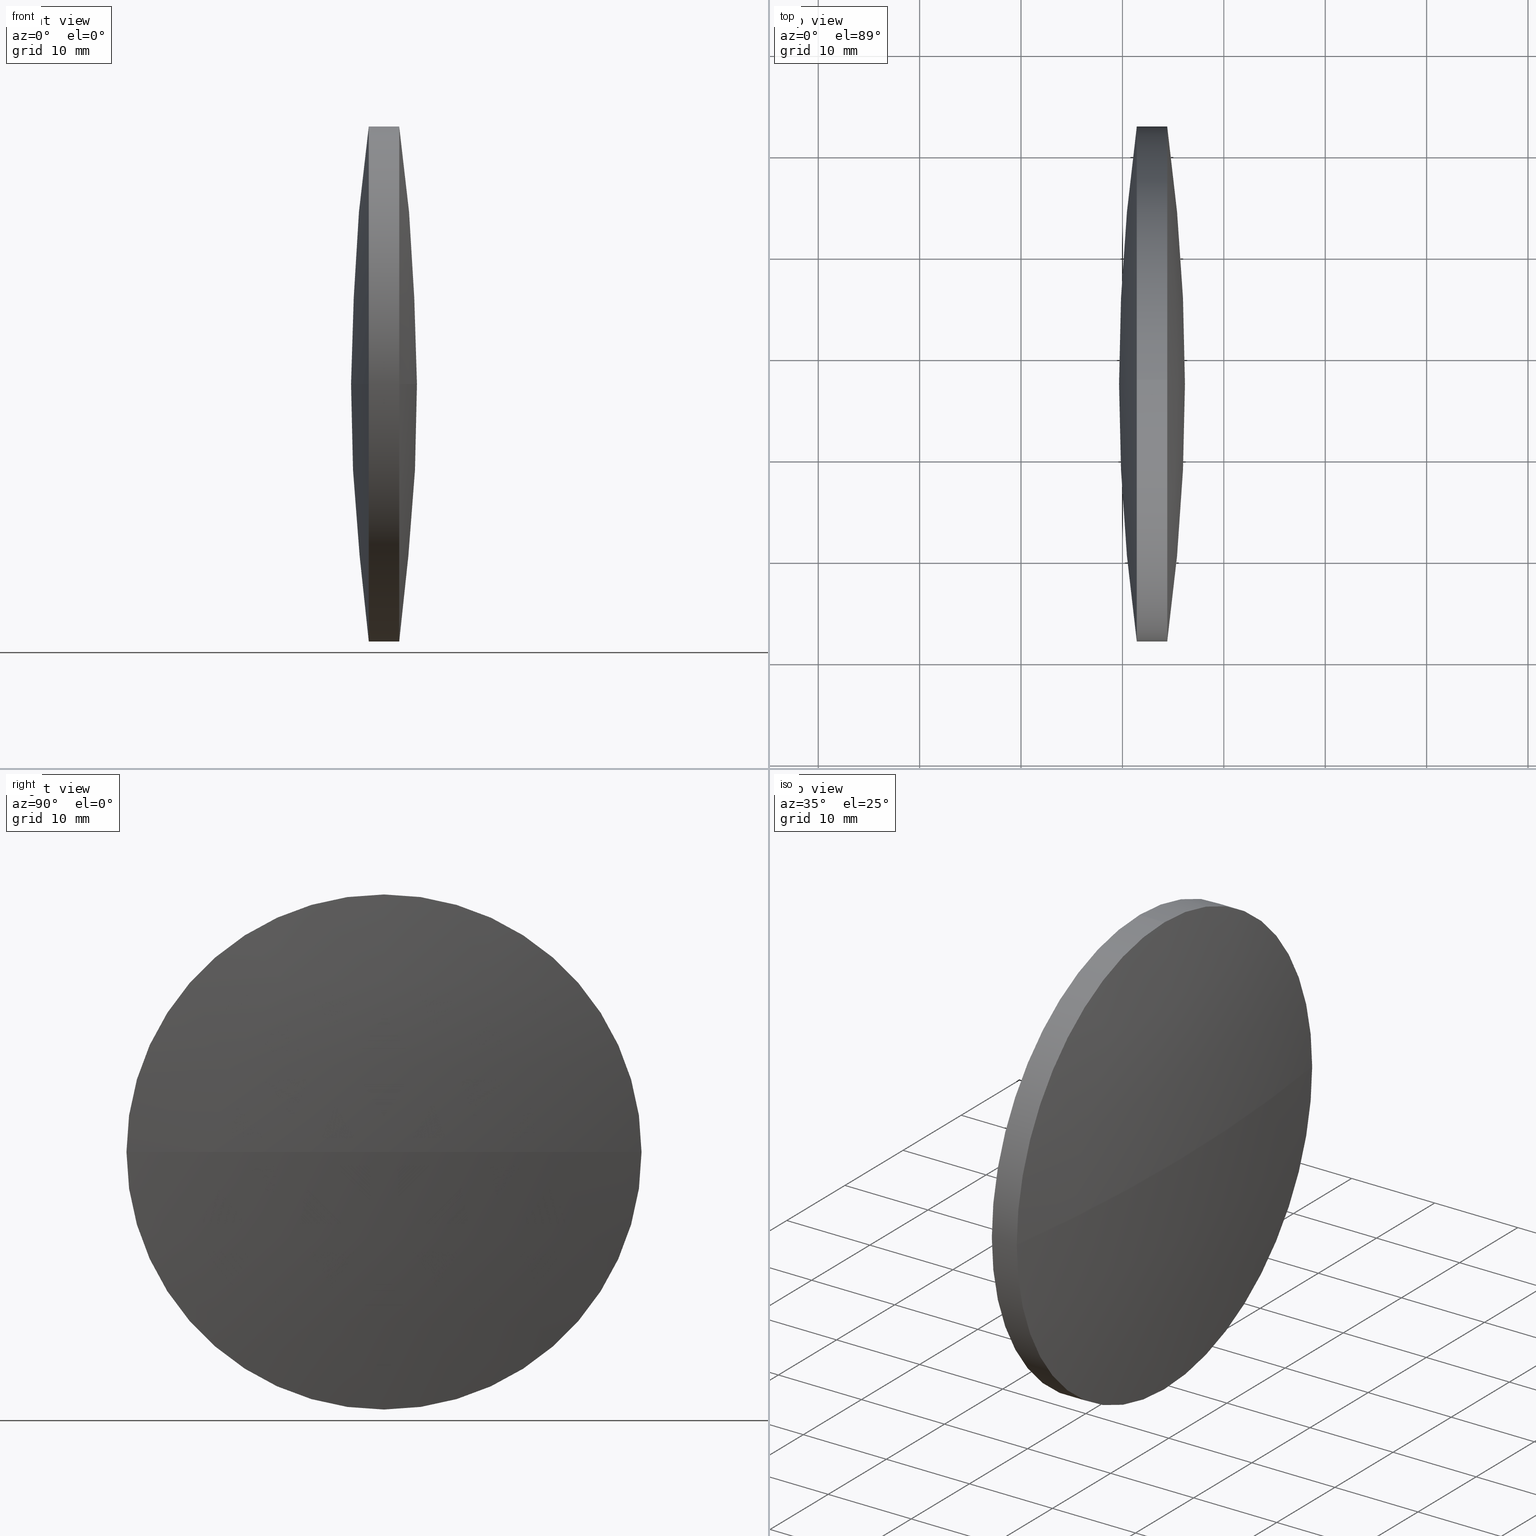
[diagram: canonical four-view strip — front | top / right | iso, engineering-drawing reading convention]
A machine part, canonical four-view strip (front | top / right | iso — engineering-drawing reading convention). The complete STEP part file that produces these views, byte-faithful:
ISO-10303-21;
HEADER;
FILE_DESCRIPTION (( 'STEP AP203' ),
    '1' );
FILE_NAME ('110107.STEP',
    '2019-07-08T08:10:05',
    ( '' ),
    ( '' ),
    'SwSTEP 2.0',
    'SolidWorks 2016',
    '' );
FILE_SCHEMA (( 'CONFIG_CONTROL_DESIGN' ));
ENDSEC;

DATA;
#1 = PERSON_AND_ORGANIZATION ( #26, #70 ) ;
#2 = ORIENTED_EDGE ( 'NONE', *, *, #96, .F. ) ;
#3 = CALENDAR_DATE ( 2019, 8, 7 ) ;
#4 = CARTESIAN_POINT ( 'NONE',  ( 354.8741677356362100, 97.23222604636927700, 0.0000000000000000000 ) ) ;
#5 = PERSON_AND_ORGANIZATION_ROLE ( 'creator' ) ;
#6 = CARTESIAN_POINT ( 'NONE',  ( 171.4164086921822200, 97.23222604636956100, 25.39999999999999100 ) ) ;
#7 = VERTEX_POINT ( 'NONE', #158 ) ;
#8 = APPROVAL_ROLE ( '' ) ;
#9 = PERSON_AND_ORGANIZATION_ROLE ( 'design_owner' ) ;
#10 = CC_DESIGN_PERSON_AND_ORGANIZATION_ASSIGNMENT ( #13, #278, ( #209 ) ) ;
#11 = COORDINATED_UNIVERSAL_TIME_OFFSET ( 8, 0, .AHEAD. ) ;
#12 = PERSON_AND_ORGANIZATION_ROLE ( 'design_owner' ) ;
#13 = PERSON_AND_ORGANIZATION ( #26, #70 ) ;
#14 = ORIENTED_EDGE ( 'NONE', *, *, #279, .T. ) ;
#15 = LOCAL_TIME ( 16, 10, 5.000000000000000000, #11 ) ;
#16 = EDGE_LOOP ( 'NONE', ( #266, #287, #306, #343 ) ) ;
#17 = EDGE_CURVE ( 'NONE', #218, #25, #307, .T. ) ;
#18 = DIRECTION ( 'NONE',  ( -1.000000000000000000, -0.0000000000000000000, -0.0000000000000000000 ) ) ;
#19 = FACE_OUTER_BOUND ( 'NONE', #284, .T. ) ;
#20 = VERTEX_POINT ( 'NONE', #54 ) ;
#21 = CARTESIAN_POINT ( 'NONE',  ( 171.4164086921822200, 97.23222604636956100, 0.0000000000000000000 ) ) ;
#22 = DATE_AND_TIME ( #181, #124 ) ;
#23 = EDGE_CURVE ( 'NONE', #218, #281, #97, .T. ) ;
#24 = CYLINDRICAL_SURFACE ( 'NONE', #310, 25.39999999999999100 ) ;
#25 = VERTEX_POINT ( 'NONE', #268 ) ;
#26 = PERSON ( 'δָ��', 'δָ��', 'δָ��', ('δָ��'), ('δָ��'), ('δָ��') ) ;
#27 = CARTESIAN_POINT ( 'NONE',  ( -9.041392636991657700, 97.23222604636865200, 0.0000000000000000000 ) ) ;
#28 = AXIS2_PLACEMENT_3D ( 'NONE', #27, #323, #114 ) ;
#29 = DIRECTION ( 'NONE',  ( 1.000000000000000000, 0.0000000000000000000, 0.0000000000000000000 ) ) ;
#30 = CARTESIAN_POINT ( 'NONE',  ( 171.4164086921822200, 71.83222604636944200, -3.110602869834257900E-015 ) ) ;
#31 = FACE_OUTER_BOUND ( 'NONE', #37, .T. ) ;
#32 = ORIENTED_EDGE ( 'NONE', *, *, #126, .F. ) ;
#33 = CARTESIAN_POINT ( 'NONE',  ( 354.8741677356362100, 97.23222604636927700, 0.0000000000000000000 ) ) ;
#34 = DIRECTION ( 'NONE',  ( -0.0000000000000000000, 0.0000000000000000000, -1.000000000000000000 ) ) ;
#35 = AXIS2_PLACEMENT_3D ( 'NONE', #317, #254, #324 ) ;
#36 = CC_DESIGN_PERSON_AND_ORGANIZATION_ASSIGNMENT ( #1, #9, ( #215 ) ) ;
#37 = EDGE_LOOP ( 'NONE', ( #308, #66, #176, #52, #2, #191 ) ) ;
#38 = ORIENTED_EDGE ( 'NONE', *, *, #69, .T. ) ;
#39 = CALENDAR_DATE ( 2019, 8, 7 ) ;
#40 = DATE_TIME_ROLE ( 'classification_date' ) ;
#41 = PERSON_AND_ORGANIZATION_ROLE ( 'creator' ) ;
#42 = AXIS2_PLACEMENT_3D ( 'NONE', #217, #314, #319 ) ;
#43 = EDGE_CURVE ( 'NONE', #7, #174, #208, .T. ) ;
#44 = PERSON_AND_ORGANIZATION ( #26, #70 ) ;
#45 = APPROVAL_DATE_TIME ( #117, #269 ) ;
#46 = CIRCLE ( 'NONE', #248, 185.2077464720253200 ) ;
#47 = ORIENTED_EDGE ( 'NONE', *, *, #69, .F. ) ;
#48 = DIRECTION ( 'NONE',  ( 0.0000000000000000000, 0.0000000000000000000, 1.000000000000000000 ) ) ;
#49 = CARTESIAN_POINT ( 'NONE',  ( 171.4164086921822200, 97.23222604636956100, 0.0000000000000000000 ) ) ;
#50 = COORDINATED_UNIVERSAL_TIME_OFFSET ( 8, 0, .AHEAD. ) ;
#51 = DIRECTION ( 'NONE',  ( -1.000000000000000000, -0.0000000000000000000, -0.0000000000000000000 ) ) ;
#52 = ORIENTED_EDGE ( 'NONE', *, *, #146, .T. ) ;
#53 = CC_DESIGN_DATE_AND_TIME_ASSIGNMENT ( #245, #204, ( #263 ) ) ;
#54 = CARTESIAN_POINT ( 'NONE',  ( 171.4164086921822200, 122.6322260463694100, 0.0000000000000000000 ) ) ;
#55 = DIRECTION ( 'NONE',  ( -0.0000000000000000000, 0.0000000000000000000, -1.000000000000000000 ) ) ;
#56 = AXIS2_PLACEMENT_3D ( 'NONE', #242, #18, #48 ) ;
#57 = ORIENTED_EDGE ( 'NONE', *, *, #96, .T. ) ;
#58 = EDGE_CURVE ( 'NONE', #174, #218, #190, .T. ) ;
#59 = CARTESIAN_POINT ( 'NONE',  ( 174.4163664064679400, 97.23222604636956100, 0.0000000000000000000 ) ) ;
#60 = DIRECTION ( 'NONE',  ( 1.000000000000000000, 0.0000000000000000000, 0.0000000000000000000 ) ) ;
#61 = DESIGN_CONTEXT ( 'detailed design', #299, 'design' ) ;
#62 = CC_DESIGN_SECURITY_CLASSIFICATION ( #209, ( #187 ) ) ;
#63 = APPROVAL_ROLE ( '' ) ;
#64 = DIRECTION ( 'NONE',  ( -1.000000000000000000, -0.0000000000000000000, -0.0000000000000000000 ) ) ;
#65 = APPROVAL_ROLE ( '' ) ;
#66 = ORIENTED_EDGE ( 'NONE', *, *, #17, .T. ) ;
#67 = ADVANCED_BREP_SHAPE_REPRESENTATION ( '110107', ( #335, #106 ), #144 ) ;
#68 = AXIS2_PLACEMENT_3D ( 'NONE', #21, #130, #78 ) ;
#69 = EDGE_CURVE ( 'NONE', #151, #20, #102, .T. ) ;
#70 = ORGANIZATION ( 'δָ��', 'δָ��', '' ) ;
#71 = ORIENTED_EDGE ( 'NONE', *, *, #17, .F. ) ;
#72 = LOCAL_TIME ( 16, 10, 5.000000000000000000, #156 ) ;
#73 = EDGE_CURVE ( 'NONE', #281, #182, #107, .T. ) ;
#74 = CARTESIAN_POINT ( 'NONE',  ( 171.4164086921822200, 97.23222604636956100, 0.0000000000000000000 ) ) ;
#75 = APPROVAL ( #207, 'δָ��' ) ;
#76 = FACE_OUTER_BOUND ( 'NONE', #260, .T. ) ;
#77 = DIRECTION ( 'NONE',  ( -1.000000000000000000, -0.0000000000000000000, -0.0000000000000000000 ) ) ;
#78 = DIRECTION ( 'NONE',  ( 0.0000000000000000000, 0.0000000000000000000, 1.000000000000000000 ) ) ;
#79 = EDGE_CURVE ( 'NONE', #20, #281, #118, .T. ) ;
#80 = APPROVAL_PERSON_ORGANIZATION ( #239, #206, #8 ) ;
#81 = SECURITY_CLASSIFICATION ( '', '', #171 ) ;
#82 = DATE_AND_TIME ( #180, #329 ) ;
#83 = PRODUCT ( '110107', '110107', '', ( #136 ) ) ;
#84 = DIRECTION ( 'NONE',  ( 0.0000000000000000000, 0.0000000000000000000, 1.000000000000000000 ) ) ;
#85 = DIRECTION ( 'NONE',  ( -0.0000000000000000000, 0.0000000000000000000, -1.000000000000000000 ) ) ;
#86 = DIRECTION ( 'NONE',  ( 0.0000000000000000000, 0.0000000000000000000, 1.000000000000000000 ) ) ;
#87 = LOCAL_TIME ( 16, 10, 5.000000000000000000, #155 ) ;
#88 = PERSON_AND_ORGANIZATION_ROLE ( 'design_supplier' ) ;
#89 = DIRECTION ( 'NONE',  ( 0.0000000000000000000, 1.000000000000000000, 0.0000000000000000000 ) ) ;
#90 = APPROVAL_STATUS ( 'not_yet_approved' ) ;
#91 = APPLICATION_CONTEXT ( 'configuration controlled 3d designs of mechanical parts and assemblies' ) ;
#92 = CC_DESIGN_PERSON_AND_ORGANIZATION_ASSIGNMENT ( #150, #5, ( #263 ) ) ;
#93 = DATE_AND_TIME ( #159, #237 ) ;
#94 = PERSON_AND_ORGANIZATION ( #26, #70 ) ;
#95 = PERSON_AND_ORGANIZATION ( #26, #70 ) ;
#96 = EDGE_CURVE ( 'NONE', #182, #151, #327, .T. ) ;
#97 = LINE ( 'NONE', #108, #259 ) ;
#98 = ORIENTED_EDGE ( 'NONE', *, *, #43, .T. ) ;
#99 = APPROVAL ( #331, 'δָ��' ) ;
#100 = COORDINATED_UNIVERSAL_TIME_OFFSET ( 8, 0, .AHEAD. ) ;
#101 = LINE ( 'NONE', #244, #312 ) ;
#102 = CIRCLE ( 'NONE', #240, 25.39999999999999100 ) ;
#103 = DESIGN_CONTEXT ( 'detailed design', #122, 'design' ) ;
#104 = DIRECTION ( 'NONE',  ( -1.000000000000000000, -0.0000000000000000000, -0.0000000000000000000 ) ) ;
#105 = CARTESIAN_POINT ( 'NONE',  ( 174.4163664064679400, 97.23222604636956100, 0.0000000000000000000 ) ) ;
#106 = AXIS2_PLACEMENT_3D ( 'NONE', #165, #135, #201 ) ;
#107 = CIRCLE ( 'NONE', #68, 25.39999999999999100 ) ;
#108 = CARTESIAN_POINT ( 'NONE',  ( 165.7441079421506900, 97.23222604636956100, -25.39999999999999100 ) ) ;
#109 = LOCAL_TIME ( 16, 10, 5.000000000000000000, #257 ) ;
#110 = CARTESIAN_POINT ( 'NONE',  ( 174.4163664064679400, 97.23222604636956100, -25.39999999999999100 ) ) ;
#111 = DIRECTION ( 'NONE',  ( -0.0000000000000000000, 0.0000000000000000000, -1.000000000000000000 ) ) ;
#112 = ORIENTED_EDGE ( 'NONE', *, *, #126, .T. ) ;
#113 = DIRECTION ( 'NONE',  ( 0.0000000000000000000, 1.000000000000000000, 0.0000000000000000000 ) ) ;
#114 = DIRECTION ( 'NONE',  ( 0.0000000000000000000, 1.000000000000000000, 1.224646799147353200E-016 ) ) ;
#115 = APPROVAL ( #123, 'δָ��' ) ;
#116 = APPROVAL_STATUS ( 'not_yet_approved' ) ;
#117 = DATE_AND_TIME ( #325, #154 ) ;
#118 = CIRCLE ( 'NONE', #125, 25.39999999999999100 ) ;
#119 = MECHANICAL_CONTEXT ( 'NONE', #91, 'mechanical' ) ;
#120 = ORIENTED_EDGE ( 'NONE', *, *, #146, .F. ) ;
#121 = APPROVAL_PERSON_ORGANIZATION ( #95, #115, #175 ) ;
#122 = APPLICATION_CONTEXT ( 'configuration controlled 3d designs of mechanical parts and assemblies' ) ;
#123 = APPROVAL_STATUS ( 'not_yet_approved' ) ;
#124 = LOCAL_TIME ( 16, 10, 5.000000000000000000, #100 ) ;
#125 = AXIS2_PLACEMENT_3D ( 'NONE', #49, #77, #265 ) ;
#126 = EDGE_CURVE ( 'NONE', #182, #202, #46, .T. ) ;
#127 = COORDINATED_UNIVERSAL_TIME_OFFSET ( 8, 0, .AHEAD. ) ;
#128 = ADVANCED_FACE ( 'NONE', ( #19 ), #342, .T. ) ;
#129 = CC_DESIGN_APPROVAL ( #75, ( #263 ) ) ;
#130 = DIRECTION ( 'NONE',  ( -1.000000000000000000, -0.0000000000000000000, -0.0000000000000000000 ) ) ;
#131 = DATE_AND_TIME ( #305, #247 ) ;
#132 = DIRECTION ( 'NONE',  ( -1.000000000000000000, -0.0000000000000000000, -0.0000000000000000000 ) ) ;
#133 = DIRECTION ( 'NONE',  ( 0.0000000000000000000, 1.000000000000000000, 1.224646799147353500E-016 ) ) ;
#134 = DIRECTION ( 'NONE',  ( 0.0000000000000000000, 1.224646799147353200E-016, -1.000000000000000000 ) ) ;
#135 = DIRECTION ( 'NONE',  ( 0.0000000000000000000, 0.0000000000000000000, 1.000000000000000000 ) ) ;
#136 = MECHANICAL_CONTEXT ( 'NONE', #255, 'mechanical' ) ;
#137 = AXIS2_PLACEMENT_3D ( 'NONE', #105, #345, #220 ) ;
#138 = DIRECTION ( 'NONE',  ( 0.0000000000000000000, 1.000000000000000000, 0.0000000000000000000 ) ) ;
#139 = ORIENTED_EDGE ( 'NONE', *, *, #79, .T. ) ;
#140 = DATE_TIME_ROLE ( 'creation_date' ) ;
#141 = ORIENTED_EDGE ( 'NONE', *, *, #279, .F. ) ;
#142 = APPLICATION_PROTOCOL_DEFINITION ( 'international standard', 'config_control_design', 1994, #299 ) ;
#143 = APPLICATION_PROTOCOL_DEFINITION ( 'international standard', 'config_control_design', 1994, #122 ) ;
#144 =( GEOMETRIC_REPRESENTATION_CONTEXT ( 3 ) GLOBAL_UNCERTAINTY_ASSIGNED_CONTEXT ( ( #216 ) ) GLOBAL_UNIT_ASSIGNED_CONTEXT ( ( #172, #300, #173 ) ) REPRESENTATION_CONTEXT ( 'NONE', 'WORKASPACE' ) );
#145 = PERSON_AND_ORGANIZATION_ROLE ( 'design_supplier' ) ;
#146 = EDGE_CURVE ( 'NONE', #7, #151, #101, .T. ) ;
#147 = PERSON_AND_ORGANIZATION_ROLE ( 'creator' ) ;
#148 = DATE_AND_TIME ( #233, #162 ) ;
#149 = VERTEX_POINT ( 'NONE', #296 ) ;
#150 = PERSON_AND_ORGANIZATION ( #26, #70 ) ;
#151 = VERTEX_POINT ( 'NONE', #6 ) ;
#152 = PRODUCT_DEFINITION ( 'δ֪', '', #187, #61 ) ;
#153 = ADVANCED_FACE ( 'NONE', ( #318 ), #290, .T. ) ;
#154 = LOCAL_TIME ( 16, 10, 5.000000000000000000, #198 ) ;
#155 = COORDINATED_UNIVERSAL_TIME_OFFSET ( 8, 0, .AHEAD. ) ;
#156 = COORDINATED_UNIVERSAL_TIME_OFFSET ( 8, 0, .AHEAD. ) ;
#157 = CC_DESIGN_PERSON_AND_ORGANIZATION_ASSIGNMENT ( #301, #145, ( #282 ) ) ;
#158 = CARTESIAN_POINT ( 'NONE',  ( 174.4163664064679400, 97.23222604636956100, 25.39999999999999100 ) ) ;
#159 = CALENDAR_DATE ( 2019, 8, 7 ) ;
#160 = CC_DESIGN_APPROVAL ( #243, ( #282 ) ) ;
#161 = EDGE_CURVE ( 'NONE', #149, #25, #246, .T. ) ;
#162 = LOCAL_TIME ( 16, 10, 5.000000000000000000, #211 ) ;
#163 = ORIENTED_EDGE ( 'NONE', *, *, #73, .T. ) ;
#164 = CALENDAR_DATE ( 2019, 8, 7 ) ;
#165 = CARTESIAN_POINT ( 'NONE',  ( 0.0000000000000000000, 0.0000000000000000000, 0.0000000000000000000 ) ) ;
#166 = CARTESIAN_POINT ( 'NONE',  ( 171.4164086921822200, 97.23222604636956100, -25.39999999999999100 ) ) ;
#167 = CIRCLE ( 'NONE', #226, 185.2077464720253200 ) ;
#168 = EDGE_LOOP ( 'NONE', ( #298, #195, #328, #47, #120, #98 ) ) ;
#169 = APPROVAL_STATUS ( 'not_yet_approved' ) ;
#170 = DIRECTION ( 'NONE',  ( -1.000000000000000000, -0.0000000000000000000, -0.0000000000000000000 ) ) ;
#171 = SECURITY_CLASSIFICATION_LEVEL ( 'unclassified' ) ;
#172 =( LENGTH_UNIT ( ) NAMED_UNIT ( * ) SI_UNIT ( .MILLI., .METRE. ) );
#173 =( NAMED_UNIT ( * ) SI_UNIT ( $, .STERADIAN. ) SOLID_ANGLE_UNIT ( ) );
#174 = VERTEX_POINT ( 'NONE', #249 ) ;
#175 = APPROVAL_ROLE ( '' ) ;
#176 = ORIENTED_EDGE ( 'NONE', *, *, #225, .T. ) ;
#177 = PERSON_AND_ORGANIZATION_ROLE ( 'creator' ) ;
#178 = AXIS2_PLACEMENT_3D ( 'NONE', #294, #232, #330 ) ;
#179 = ORIENTED_EDGE ( 'NONE', *, *, #199, .F. ) ;
#180 = CALENDAR_DATE ( 2019, 8, 7 ) ;
#181 = CALENDAR_DATE ( 2019, 8, 7 ) ;
#182 = VERTEX_POINT ( 'NONE', #30 ) ;
#183 = AXIS2_PLACEMENT_3D ( 'NONE', #322, #111, #138 ) ;
#184 = PRODUCT_RELATED_PRODUCT_CATEGORY ( 'detail', '', ( #83 ) ) ;
#185 = DATE_AND_TIME ( #164, #87 ) ;
#186 = ADVANCED_FACE ( 'NONE', ( #31 ), #24, .T. ) ;
#187 = PRODUCT_DEFINITION_FORMATION_WITH_SPECIFIED_SOURCE ( '�κ�', '', #215, .NOT_KNOWN. ) ;
#188 = PERSON_AND_ORGANIZATION ( #26, #70 ) ;
#189 = DIRECTION ( 'NONE',  ( 0.0000000000000000000, 0.0000000000000000000, 1.000000000000000000 ) ) ;
#190 = CIRCLE ( 'NONE', #137, 25.39999999999999100 ) ;
#191 = ORIENTED_EDGE ( 'NONE', *, *, #73, .F. ) ;
#192 = AXIS2_PLACEMENT_3D ( 'NONE', #196, #194, #29 ) ;
#193 = CC_DESIGN_APPROVAL ( #99, ( #187 ) ) ;
#194 = DIRECTION ( 'NONE',  ( -0.0000000000000000000, 0.0000000000000000000, 1.000000000000000000 ) ) ;
#195 = ORIENTED_EDGE ( 'NONE', *, *, #23, .T. ) ;
#196 = CARTESIAN_POINT ( 'NONE',  ( -9.041392636991657700, 97.23222604636865200, 0.0000000000000000000 ) ) ;
#197 = CARTESIAN_POINT ( 'NONE',  ( -9.041392636991657700, 97.23222604636865200, 0.0000000000000000000 ) ) ;
#198 = COORDINATED_UNIVERSAL_TIME_OFFSET ( 8, 0, .AHEAD. ) ;
#199 = EDGE_CURVE ( 'NONE', #149, #174, #251, .T. ) ;
#200 = ORIENTED_EDGE ( 'NONE', *, *, #58, .F. ) ;
#201 = DIRECTION ( 'NONE',  ( 1.000000000000000000, 0.0000000000000000000, 0.0000000000000000000 ) ) ;
#202 = VERTEX_POINT ( 'NONE', #273 ) ;
#203 = PERSON_AND_ORGANIZATION ( #26, #70 ) ;
#204 = DATE_TIME_ROLE ( 'creation_date' ) ;
#205 = AXIS2_PLACEMENT_3D ( 'NONE', #197, #55, #253 ) ;
#206 = APPROVAL ( #116, 'δָ��' ) ;
#207 = APPROVAL_STATUS ( 'not_yet_approved' ) ;
#208 = CIRCLE ( 'NONE', #56, 25.39999999999999100 ) ;
#209 = SECURITY_CLASSIFICATION ( '', '', #304 ) ;
#210 = FACE_OUTER_BOUND ( 'NONE', #267, .T. ) ;
#211 = COORDINATED_UNIVERSAL_TIME_OFFSET ( 8, 0, .AHEAD. ) ;
#212 = AXIS2_PLACEMENT_3D ( 'NONE', #224, #170, #86 ) ;
#213 = CLOSED_SHELL ( 'NONE', ( #153, #128, #241, #340, #289, #186 ) ) ;
#214 = CC_DESIGN_DATE_AND_TIME_ASSIGNMENT ( #131, #277, ( #209 ) ) ;
#215 = PRODUCT ( '110107', '110107', '', ( #119 ) ) ;
#216 = UNCERTAINTY_MEASURE_WITH_UNIT (LENGTH_MEASURE( 1.000000000000000100E-005 ), #172, 'distance_accuracy_value', 'NONE');
#217 = CARTESIAN_POINT ( 'NONE',  ( 174.4163664064679400, 97.23222604636956100, 0.0000000000000000000 ) ) ;
#218 = VERTEX_POINT ( 'NONE', #110 ) ;
#219 = CC_DESIGN_PERSON_AND_ORGANIZATION_ASSIGNMENT ( #280, #177, ( #152 ) ) ;
#220 = DIRECTION ( 'NONE',  ( 0.0000000000000000000, 0.0000000000000000000, 1.000000000000000000 ) ) ;
#221 = APPROVAL_DATE_TIME ( #303, #206 ) ;
#222 = CARTESIAN_POINT ( 'NONE',  ( 354.8741677356362100, 97.23222604636927700, 0.0000000000000000000 ) ) ;
#223 = APPROVAL_DATE_TIME ( #309, #75 ) ;
#224 = CARTESIAN_POINT ( 'NONE',  ( 171.4164086921822200, 97.23222604636956100, 0.0000000000000000000 ) ) ;
#225 = EDGE_CURVE ( 'NONE', #25, #7, #256, .T. ) ;
#226 = AXIS2_PLACEMENT_3D ( 'NONE', #33, #228, #60 ) ;
#227 = DIRECTION ( 'NONE',  ( 0.0000000000000000000, 0.0000000000000000000, 1.000000000000000000 ) ) ;
#228 = DIRECTION ( 'NONE',  ( -0.0000000000000000000, 0.0000000000000000000, 1.000000000000000000 ) ) ;
#229 = ORIENTED_EDGE ( 'NONE', *, *, #161, .T. ) ;
#230 = APPROVAL_ROLE ( '' ) ;
#231 = CC_DESIGN_PERSON_AND_ORGANIZATION_ASSIGNMENT ( #264, #302, ( #81 ) ) ;
#232 = DIRECTION ( 'NONE',  ( 0.0000000000000000000, 0.0000000000000000000, 1.000000000000000000 ) ) ;
#233 = CALENDAR_DATE ( 2019, 8, 7 ) ;
#234 = APPROVAL_ROLE ( '' ) ;
#235 = CC_DESIGN_DATE_AND_TIME_ASSIGNMENT ( #148, #140, ( #152 ) ) ;
#236 = AXIS2_PLACEMENT_3D ( 'NONE', #270, #34, #89 ) ;
#237 = LOCAL_TIME ( 16, 10, 5.000000000000000000, #50 ) ;
#238 = CC_DESIGN_PERSON_AND_ORGANIZATION_ASSIGNMENT ( #44, #88, ( #187 ) ) ;
#239 = PERSON_AND_ORGANIZATION ( #26, #70 ) ;
#240 = AXIS2_PLACEMENT_3D ( 'NONE', #74, #104, #189 ) ;
#241 = ADVANCED_FACE ( 'NONE', ( #76 ), #338, .T. ) ;
#242 = CARTESIAN_POINT ( 'NONE',  ( 174.4163664064679400, 97.23222604636956100, 0.0000000000000000000 ) ) ;
#243 = APPROVAL ( #90, 'δָ��' ) ;
#244 = CARTESIAN_POINT ( 'NONE',  ( 165.7441079421506900, 97.23222604636956100, 25.39999999999999100 ) ) ;
#245 = DATE_AND_TIME ( #3, #72 ) ;
#246 = CIRCLE ( 'NONE', #28, 185.2077464720309200 ) ;
#247 = LOCAL_TIME ( 16, 10, 5.000000000000000000, #127 ) ;
#248 = AXIS2_PLACEMENT_3D ( 'NONE', #4, #134, #133 ) ;
#249 = CARTESIAN_POINT ( 'NONE',  ( 174.4163664064679400, 122.6322260463690800, 0.0000000000000000000 ) ) ;
#250 = PRODUCT_DEFINITION_SHAPE ( 'NONE', 'NONE',  #152 ) ;
#251 = CIRCLE ( 'NONE', #192, 185.2077464720309200 ) ;
#252 = APPROVAL_DATE_TIME ( #185, #99 ) ;
#253 = DIRECTION ( 'NONE',  ( 0.0000000000000000000, 1.000000000000000000, 0.0000000000000000000 ) ) ;
#254 = DIRECTION ( 'NONE',  ( -1.000000000000000000, -0.0000000000000000000, -0.0000000000000000000 ) ) ;
#255 = APPLICATION_CONTEXT ( 'configuration controlled 3d designs of mechanical parts and assemblies' ) ;
#256 = CIRCLE ( 'NONE', #332, 25.39999999999999100 ) ;
#257 = COORDINATED_UNIVERSAL_TIME_OFFSET ( 8, 0, .AHEAD. ) ;
#258 = CC_DESIGN_APPROVAL ( #115, ( #209 ) ) ;
#259 = VECTOR ( 'NONE', #51, 1000.000000000000000 ) ;
#260 = EDGE_LOOP ( 'NONE', ( #139, #163, #112, #141 ) ) ;
#261 = APPROVAL_PERSON_ORGANIZATION ( #203, #75, #230 ) ;
#262 = CC_DESIGN_PERSON_AND_ORGANIZATION_ASSIGNMENT ( #295, #12, ( #83 ) ) ;
#263 = PRODUCT_DEFINITION ( 'δ֪', '', #282, #103 ) ;
#264 = PERSON_AND_ORGANIZATION ( #26, #70 ) ;
#265 = DIRECTION ( 'NONE',  ( 0.0000000000000000000, 0.0000000000000000000, 1.000000000000000000 ) ) ;
#266 = ORIENTED_EDGE ( 'NONE', *, *, #161, .F. ) ;
#267 = EDGE_LOOP ( 'NONE', ( #32, #57, #38, #14 ) ) ;
#268 = CARTESIAN_POINT ( 'NONE',  ( 174.4163664064679400, 71.83222604636912900, -3.110602869834218900E-015 ) ) ;
#269 = APPROVAL ( #169, 'δָ��' ) ;
#270 = CARTESIAN_POINT ( 'NONE',  ( 354.8741677356362100, 97.23222604636927700, 0.0000000000000000000 ) ) ;
#271 = CARTESIAN_POINT ( 'NONE',  ( 165.7441079421506900, 97.23222604636956100, 0.0000000000000000000 ) ) ;
#272 = DIRECTION ( 'NONE',  ( -1.000000000000000000, -0.0000000000000000000, -0.0000000000000000000 ) ) ;
#273 = CARTESIAN_POINT ( 'NONE',  ( 169.6664212636108300, 97.23222604636929100, 0.0000000000000000000 ) ) ;
#274 = APPROVAL_PERSON_ORGANIZATION ( #341, #269, #234 ) ;
#275 = SPHERICAL_SURFACE ( 'NONE', #205, 185.2077464720309200 ) ;
#276 = APPLICATION_PROTOCOL_DEFINITION ( 'international standard', 'config_control_design', 1994, #91 ) ;
#277 = DATE_TIME_ROLE ( 'classification_date' ) ;
#278 = PERSON_AND_ORGANIZATION_ROLE ( 'classification_officer' ) ;
#279 = EDGE_CURVE ( 'NONE', #20, #202, #167, .T. ) ;
#280 = PERSON_AND_ORGANIZATION ( #26, #70 ) ;
#281 = VERTEX_POINT ( 'NONE', #166 ) ;
#282 = PRODUCT_DEFINITION_FORMATION_WITH_SPECIFIED_SOURCE ( '�κ�', '', #83, .NOT_KNOWN. ) ;
#283 = AXIS2_PLACEMENT_3D ( 'NONE', #222, #85, #113 ) ;
#284 = EDGE_LOOP ( 'NONE', ( #179, #229, #71, #200 ) ) ;
#285 = CC_DESIGN_APPROVAL ( #269, ( #81 ) ) ;
#286 = CALENDAR_DATE ( 2019, 8, 7 ) ;
#287 = ORIENTED_EDGE ( 'NONE', *, *, #199, .T. ) ;
#288 = APPROVAL_DATE_TIME ( #82, #115 ) ;
#289 = ADVANCED_FACE ( 'NONE', ( #337 ), #275, .T. ) ;
#290 = CYLINDRICAL_SURFACE ( 'NONE', #35, 25.39999999999999100 ) ;
#291 = SHAPE_DEFINITION_REPRESENTATION ( #321, #67 ) ;
#292 = PERSON_AND_ORGANIZATION ( #26, #70 ) ;
#293 = APPROVAL_PERSON_ORGANIZATION ( #94, #99, #65 ) ;
#294 = CARTESIAN_POINT ( 'NONE',  ( 0.0000000000000000000, 0.0000000000000000000, 0.0000000000000000000 ) ) ;
#295 = PERSON_AND_ORGANIZATION ( #26, #70 ) ;
#296 = CARTESIAN_POINT ( 'NONE',  ( 176.1663538350392500, 97.23222604636866600, 0.0000000000000000000 ) ) ;
#297 = CC_DESIGN_PERSON_AND_ORGANIZATION_ASSIGNMENT ( #188, #41, ( #282 ) ) ;
#298 = ORIENTED_EDGE ( 'NONE', *, *, #58, .T. ) ;
#299 = APPLICATION_CONTEXT ( 'configuration controlled 3d designs of mechanical parts and assemblies' ) ;
#300 =( NAMED_UNIT ( * ) PLANE_ANGLE_UNIT ( ) SI_UNIT ( $, .RADIAN. ) );
#301 = PERSON_AND_ORGANIZATION ( #26, #70 ) ;
#302 = PERSON_AND_ORGANIZATION_ROLE ( 'classification_officer' ) ;
#303 = DATE_AND_TIME ( #286, #15 ) ;
#304 = SECURITY_CLASSIFICATION_LEVEL ( 'unclassified' ) ;
#305 = CALENDAR_DATE ( 2019, 8, 7 ) ;
#306 = ORIENTED_EDGE ( 'NONE', *, *, #43, .F. ) ;
#307 = CIRCLE ( 'NONE', #42, 25.39999999999999100 ) ;
#308 = ORIENTED_EDGE ( 'NONE', *, *, #23, .F. ) ;
#309 = DATE_AND_TIME ( #39, #109 ) ;
#310 = AXIS2_PLACEMENT_3D ( 'NONE', #271, #272, #227 ) ;
#311 = CC_DESIGN_DATE_AND_TIME_ASSIGNMENT ( #93, #40, ( #81 ) ) ;
#312 = VECTOR ( 'NONE', #64, 1000.000000000000000 ) ;
#313 = COORDINATED_UNIVERSAL_TIME_OFFSET ( 8, 0, .AHEAD. ) ;
#314 = DIRECTION ( 'NONE',  ( -1.000000000000000000, -0.0000000000000000000, -0.0000000000000000000 ) ) ;
#315 = PRODUCT_RELATED_PRODUCT_CATEGORY ( 'detail', '', ( #215 ) ) ;
#316 = APPROVAL_PERSON_ORGANIZATION ( #292, #243, #63 ) ;
#317 = CARTESIAN_POINT ( 'NONE',  ( 165.7441079421506900, 97.23222604636956100, 0.0000000000000000000 ) ) ;
#318 = FACE_OUTER_BOUND ( 'NONE', #168, .T. ) ;
#319 = DIRECTION ( 'NONE',  ( 0.0000000000000000000, 0.0000000000000000000, 1.000000000000000000 ) ) ;
#320 = CC_DESIGN_SECURITY_CLASSIFICATION ( #81, ( #282 ) ) ;
#321 = PRODUCT_DEFINITION_SHAPE ( 'NONE', 'NONE',  #263 ) ;
#322 = CARTESIAN_POINT ( 'NONE',  ( -9.041392636991657700, 97.23222604636865200, 0.0000000000000000000 ) ) ;
#323 = DIRECTION ( 'NONE',  ( 0.0000000000000000000, 1.224646799147353200E-016, -1.000000000000000000 ) ) ;
#324 = DIRECTION ( 'NONE',  ( 0.0000000000000000000, 0.0000000000000000000, 1.000000000000000000 ) ) ;
#325 = CALENDAR_DATE ( 2019, 8, 7 ) ;
#326 = CC_DESIGN_APPROVAL ( #206, ( #152 ) ) ;
#327 = CIRCLE ( 'NONE', #212, 25.39999999999999100 ) ;
#328 = ORIENTED_EDGE ( 'NONE', *, *, #79, .F. ) ;
#329 = LOCAL_TIME ( 16, 10, 5.000000000000000000, #313 ) ;
#330 = DIRECTION ( 'NONE',  ( 1.000000000000000000, 0.0000000000000000000, 0.0000000000000000000 ) ) ;
#331 = APPROVAL_STATUS ( 'not_yet_approved' ) ;
#332 = AXIS2_PLACEMENT_3D ( 'NONE', #59, #132, #84 ) ;
#333 = APPLICATION_PROTOCOL_DEFINITION ( 'international standard', 'config_control_design', 1994, #255 ) ;
#334 = SPHERICAL_SURFACE ( 'NONE', #236, 185.2077464720253500 ) ;
#335 = MANIFOLD_SOLID_BREP ( '��ת1', #213 ) ;
#336 = APPROVAL_DATE_TIME ( #22, #243 ) ;
#337 = FACE_OUTER_BOUND ( 'NONE', #16, .T. ) ;
#338 = SPHERICAL_SURFACE ( 'NONE', #283, 185.2077464720253500 ) ;
#339 = PERSON_AND_ORGANIZATION ( #26, #70 ) ;
#340 = ADVANCED_FACE ( 'NONE', ( #210 ), #334, .T. ) ;
#341 = PERSON_AND_ORGANIZATION ( #26, #70 ) ;
#342 = SPHERICAL_SURFACE ( 'NONE', #183, 185.2077464720309200 ) ;
#343 = ORIENTED_EDGE ( 'NONE', *, *, #225, .F. ) ;
#344 = CC_DESIGN_PERSON_AND_ORGANIZATION_ASSIGNMENT ( #339, #147, ( #187 ) ) ;
#345 = DIRECTION ( 'NONE',  ( -1.000000000000000000, -0.0000000000000000000, -0.0000000000000000000 ) ) ;
ENDSEC;
END-ISO-10303-21;
